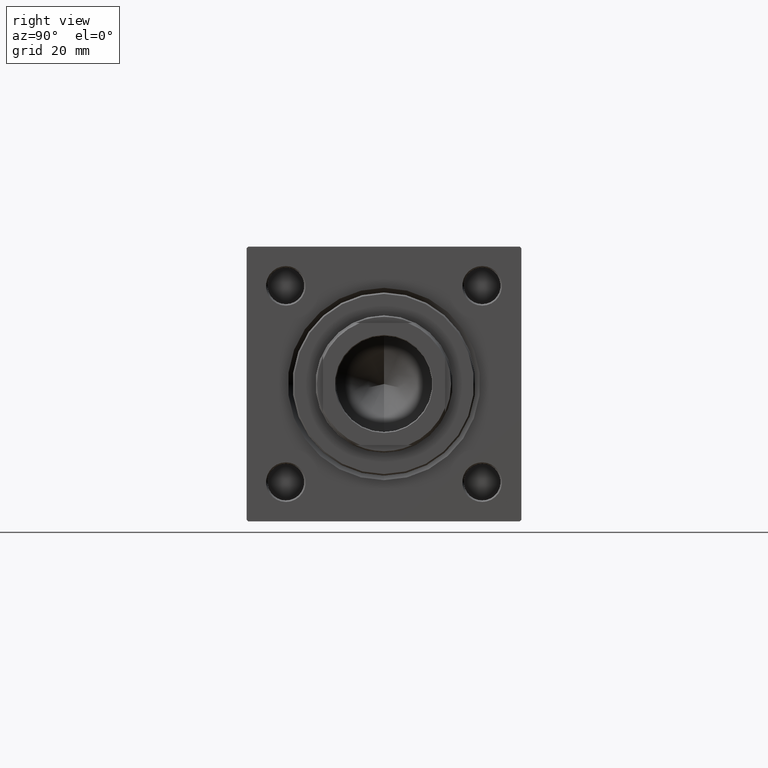
[diagram: clean part render]
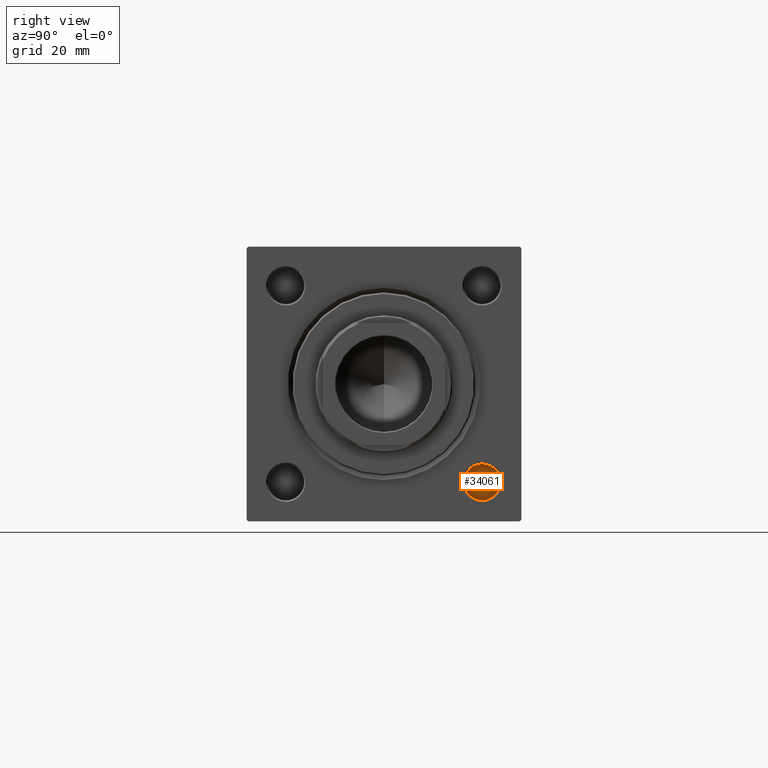
[diagram: same view with one face highlighted and labeled with its STEP entity id]
A machine part, right view. The second image highlights one B-rep face of the part: STEP entity #34061.
In plain terms, the highlighted planar face has unit normal (1, 0, 0).
Its self-contained STEP definition (entity closure, byte-faithful):
#1155 = CARTESIAN_POINT ( 'NONE',  ( 130.0000000000000000, 32.14999999999999147, -38.14999999999999147 ) ) ;
#1451 = DIRECTION ( 'NONE',  ( 1.000000000000000000, 0.000000000000000000, 0.000000000000000000 ) ) ;
#10765 = ORIENTED_EDGE ( 'NONE', *, *, #12227, .T. ) ;
#12227 = EDGE_CURVE ( 'NONE', #31332, #27088, #14033, .T. ) ;
#14033 = CIRCLE ( 'NONE', #32629, 5.999999999999991118 ) ;
#14527 = AXIS2_PLACEMENT_3D ( 'NONE', #20731, #1451, #31622 ) ;
#14834 = DIRECTION ( 'NONE',  ( 1.000000000000000000, 0.000000000000000000, 0.000000000000000000 ) ) ;
#17176 = PLANE ( 'NONE',  #14527 ) ;
#18155 = DIRECTION ( 'NONE',  ( 0.000000000000000000, 0.000000000000000000, -1.000000000000000000 ) ) ;
#19095 = CARTESIAN_POINT ( 'NONE',  ( 130.0000000000000000, 32.14999999999999147, -26.15000000000000924 ) ) ;
#19925 = DIRECTION ( 'NONE',  ( 1.000000000000000000, 0.000000000000000000, 0.000000000000000000 ) ) ;
#20731 = CARTESIAN_POINT ( 'NONE',  ( 130.0000000000000000, 32.14999999999999147, -32.14999999999999858 ) ) ;
#26138 = EDGE_CURVE ( 'NONE', #27088, #31332, #43398, .T. ) ;
#27088 = VERTEX_POINT ( 'NONE', #1155 ) ;
#28322 = FACE_OUTER_BOUND ( 'NONE', #34580, .T. ) ;
#31066 = DIRECTION ( 'NONE',  ( 0.000000000000000000, 0.000000000000000000, -1.000000000000000000 ) ) ;
#31332 = VERTEX_POINT ( 'NONE', #19095 ) ;
#31622 = DIRECTION ( 'NONE',  ( 0.000000000000000000, 0.000000000000000000, -1.000000000000000000 ) ) ;
#32629 = AXIS2_PLACEMENT_3D ( 'NONE', #45254, #14834, #18155 ) ;
#34061 = ADVANCED_FACE ( 'NONE', ( #28322 ), #17176, .T. ) ;
#34348 = CARTESIAN_POINT ( 'NONE',  ( 130.0000000000000000, 32.14999999999999147, -32.14999999999999858 ) ) ;
#34580 = EDGE_LOOP ( 'NONE', ( #42977, #10765 ) ) ;
#38542 = AXIS2_PLACEMENT_3D ( 'NONE', #34348, #19925, #31066 ) ;
#42977 = ORIENTED_EDGE ( 'NONE', *, *, #26138, .T. ) ;
#43398 = CIRCLE ( 'NONE', #38542, 5.999999999999991118 ) ;
#45254 = CARTESIAN_POINT ( 'NONE',  ( 130.0000000000000000, 32.14999999999999147, -32.14999999999999858 ) ) ;